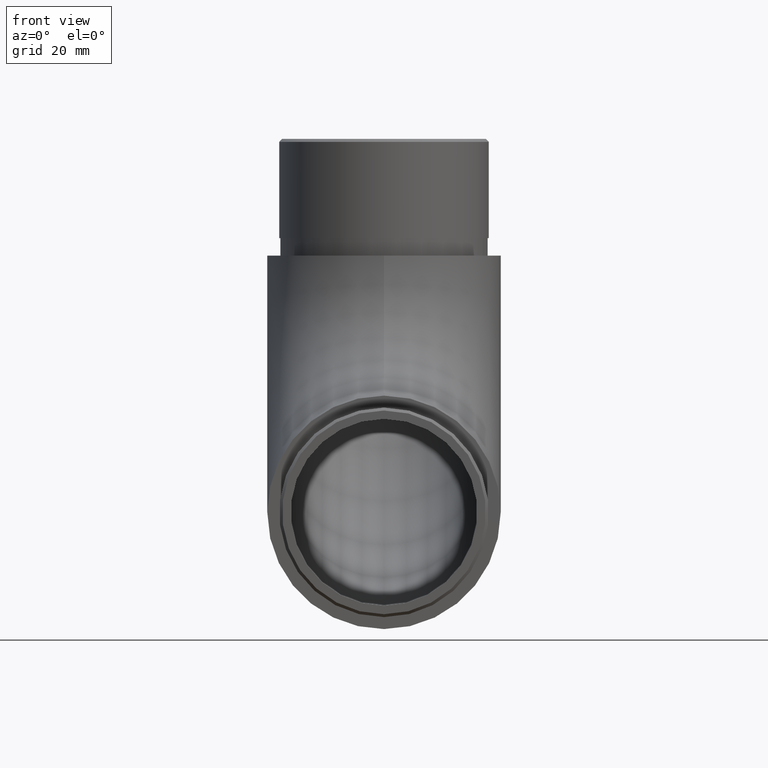
[diagram: clean part render]
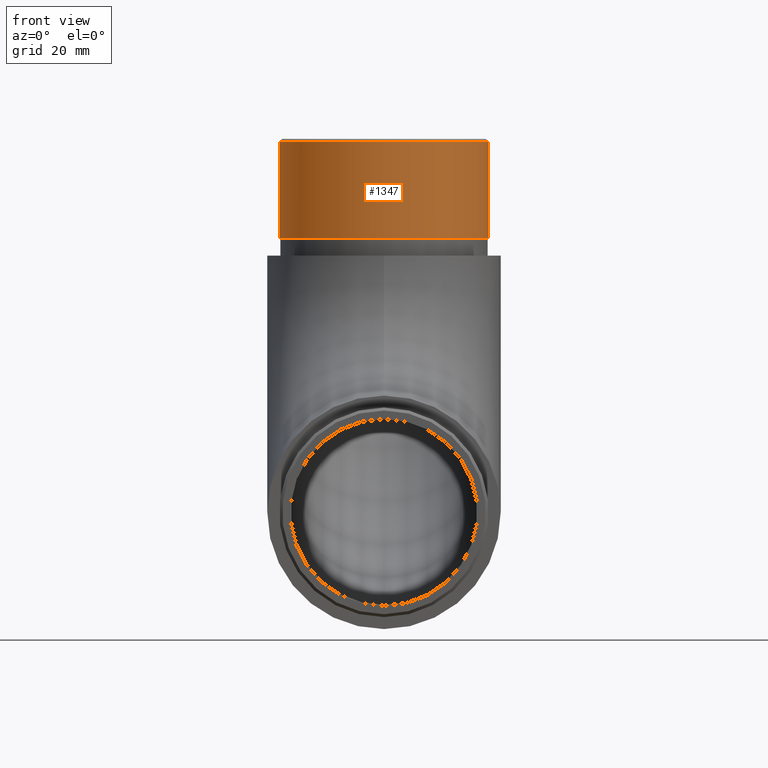
[diagram: same view with one face highlighted and labeled with its STEP entity id]
A machine part, front view. The second image highlights one B-rep face of the part: STEP entity #1347.
In plain terms, the highlighted cylindrical surface (bore or boss wall) has radius 17.95 mm, axis along (-0, -0, -1).
Its self-contained STEP definition (entity closure, byte-faithful):
#206 = CARTESIAN_POINT ( 'NONE',  ( 17.94999999999999900, 43.99999999999998600, 67.00000000000000000 ) ) ;
#591 = CYLINDRICAL_SURFACE ( 'NONE', #10268, 17.94999999999999900 ) ;
#911 = FACE_OUTER_BOUND ( 'NONE', #7088, .T. ) ;
#997 = ORIENTED_EDGE ( 'NONE', *, *, #9062, .T. ) ;
#1083 = CARTESIAN_POINT ( 'NONE',  ( 0.0000000000000000000, 43.99999999999998600, 83.50000000000000000 ) ) ;
#1347 = ADVANCED_FACE ( 'NONE', ( #911, #9806 ), #591, .T. ) ;
#1639 = CARTESIAN_POINT ( 'NONE',  ( 0.0000000000000000000, 43.99999999999998600, 84.00000000000000000 ) ) ;
#2096 = DIRECTION ( 'NONE',  ( 0.0000000000000000000, 0.0000000000000000000, -1.000000000000000000 ) ) ;
#2715 = VERTEX_POINT ( 'NONE', #206 ) ;
#3106 = DIRECTION ( 'NONE',  ( 1.000000000000000000, 0.0000000000000000000, 0.0000000000000000000 ) ) ;
#4204 = DIRECTION ( 'NONE',  ( 0.0000000000000000000, 0.0000000000000000000, 1.000000000000000000 ) ) ;
#6247 = DIRECTION ( 'NONE',  ( 1.000000000000000000, 0.0000000000000000000, 0.0000000000000000000 ) ) ;
#6299 = EDGE_LOOP ( 'NONE', ( #997 ) ) ;
#6589 = EDGE_CURVE ( 'NONE', #13431, #13431, #12342, .T. ) ;
#7088 = EDGE_LOOP ( 'NONE', ( #8874 ) ) ;
#8024 = CARTESIAN_POINT ( 'NONE',  ( 0.0000000000000000000, 43.99999999999998600, 67.00000000000000000 ) ) ;
#8845 = AXIS2_PLACEMENT_3D ( 'NONE', #8024, #4204, #3106 ) ;
#8874 = ORIENTED_EDGE ( 'NONE', *, *, #6589, .T. ) ;
#8928 = DIRECTION ( 'NONE',  ( -0.0000000000000000000, -0.0000000000000000000, -1.000000000000000000 ) ) ;
#9062 = EDGE_CURVE ( 'NONE', #2715, #2715, #12318, .T. ) ;
#9257 = AXIS2_PLACEMENT_3D ( 'NONE', #1083, #2096, #6247 ) ;
#9774 = DIRECTION ( 'NONE',  ( -1.000000000000000000, 0.0000000000000000000, 0.0000000000000000000 ) ) ;
#9806 = FACE_OUTER_BOUND ( 'NONE', #6299, .T. ) ;
#10268 = AXIS2_PLACEMENT_3D ( 'NONE', #1639, #8928, #9774 ) ;
#10597 = CARTESIAN_POINT ( 'NONE',  ( 17.94999999999999900, 43.99999999999998600, 83.50000000000000000 ) ) ;
#12318 = CIRCLE ( 'NONE', #8845, 17.94999999999999900 ) ;
#12342 = CIRCLE ( 'NONE', #9257, 17.94999999999999900 ) ;
#13431 = VERTEX_POINT ( 'NONE', #10597 ) ;